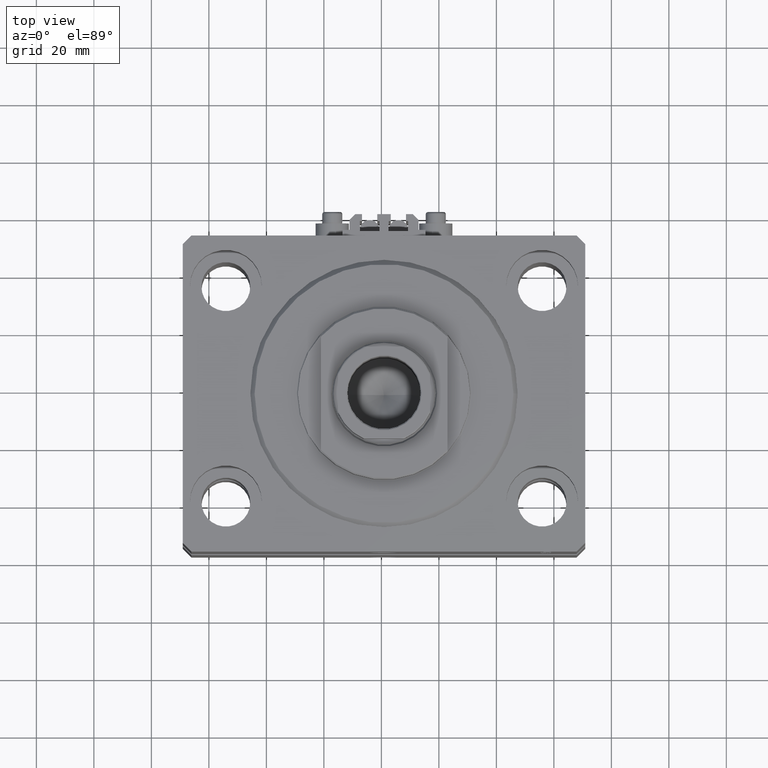
[diagram: clean part render]
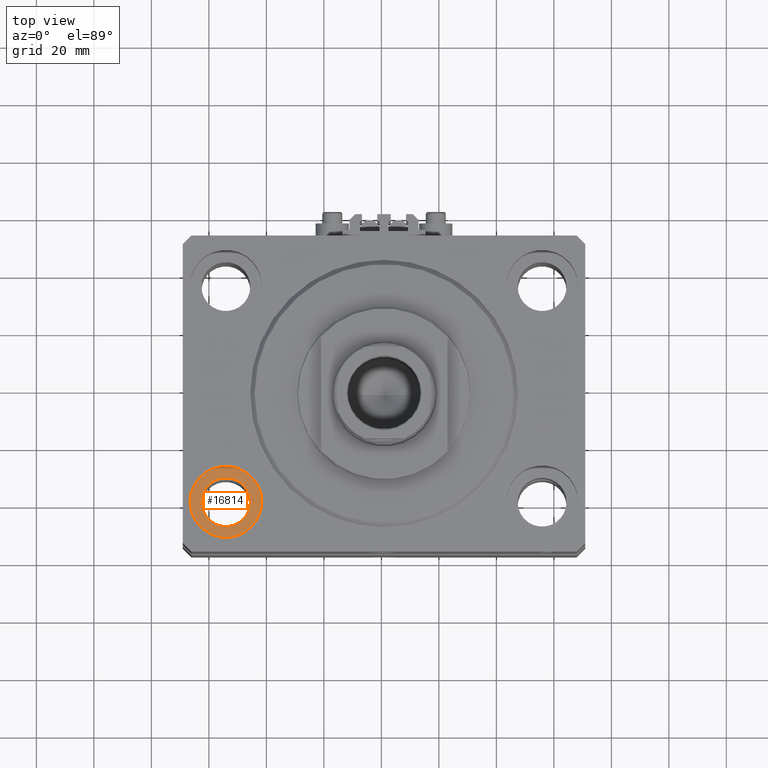
[diagram: same view with one face highlighted and labeled with its STEP entity id]
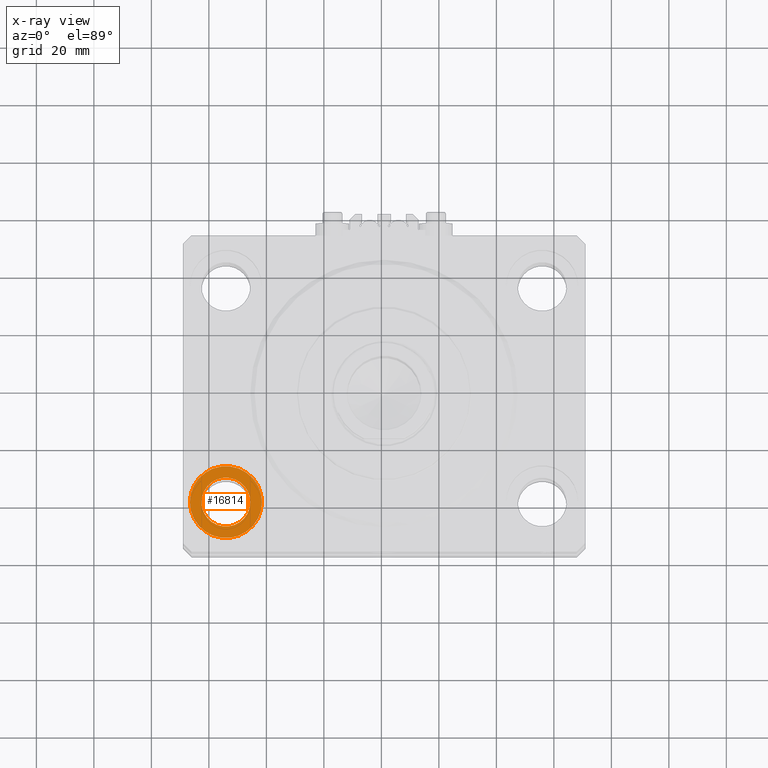
[diagram: x-ray of the same camera — body ghosted, the highlighted face saturated]
A machine part, top view. The second image highlights one B-rep face of the part: STEP entity #16814.
The next image is the same camera in x-ray: the body ghosted, the highlighted face saturated — about 0% of this face is hidden behind the body in this view.
In plain terms, the highlighted planar face has unit normal (0, 0, 1).
Its self-contained STEP definition (entity closure, byte-faithful):
#1547 = VERTEX_POINT ( 'NONE', #37913 ) ;
#2123 = DIRECTION ( 'NONE',  ( 0.000000000000000000, 0.000000000000000000, 1.000000000000000000 ) ) ;
#2834 = EDGE_LOOP ( 'NONE', ( #6706, #14645 ) ) ;
#2892 = DIRECTION ( 'NONE',  ( 1.000000000000000000, 0.000000000000000000, 0.000000000000000000 ) ) ;
#3696 = ORIENTED_EDGE ( 'NONE', *, *, #44164, .F. ) ;
#4733 = CARTESIAN_POINT ( 'NONE',  ( -55.00000000000000711, -37.50000000000000711, -17.00000000000000000 ) ) ;
#6394 = FACE_OUTER_BOUND ( 'NONE', #2834, .T. ) ;
#6636 = FACE_BOUND ( 'NONE', #19761, .T. ) ;
#6706 = ORIENTED_EDGE ( 'NONE', *, *, #32468, .T. ) ;
#7979 = CARTESIAN_POINT ( 'NONE',  ( -55.00000000000000711, -37.50000000000000711, -17.00000000000000000 ) ) ;
#9915 = PLANE ( 'NONE',  #27345 ) ;
#10516 = CARTESIAN_POINT ( 'NONE',  ( -55.00000000000000711, -37.50000000000000711, -17.00000000000000000 ) ) ;
#10683 = DIRECTION ( 'NONE',  ( 0.000000000000000000, 0.000000000000000000, 1.000000000000000000 ) ) ;
#12297 = AXIS2_PLACEMENT_3D ( 'NONE', #45014, #10683, #2892 ) ;
#13000 = DIRECTION ( 'NONE',  ( 1.000000000000000000, 0.000000000000000000, 0.000000000000000000 ) ) ;
#13848 = CIRCLE ( 'NONE', #41859, 8.499999999999992895 ) ;
#13914 = CIRCLE ( 'NONE', #12297, 12.49999999999999645 ) ;
#14324 = VERTEX_POINT ( 'NONE', #39493 ) ;
#14645 = ORIENTED_EDGE ( 'NONE', *, *, #25160, .T. ) ;
#16243 = DIRECTION ( 'NONE',  ( 1.000000000000000000, 0.000000000000000000, 0.000000000000000000 ) ) ;
#16713 = AXIS2_PLACEMENT_3D ( 'NONE', #4733, #20017, #13000 ) ;
#16814 = ADVANCED_FACE ( 'NONE', ( #6636, #6394 ), #9915, .T. ) ;
#18757 = DIRECTION ( 'NONE',  ( 1.000000000000000000, 0.000000000000000000, 0.000000000000000000 ) ) ;
#19248 = DIRECTION ( 'NONE',  ( 0.000000000000000000, 0.000000000000000000, 1.000000000000000000 ) ) ;
#19761 = EDGE_LOOP ( 'NONE', ( #3696, #24390 ) ) ;
#20017 = DIRECTION ( 'NONE',  ( 0.000000000000000000, 0.000000000000000000, 1.000000000000000000 ) ) ;
#23927 = CIRCLE ( 'NONE', #16713, 12.49999999999999645 ) ;
#24390 = ORIENTED_EDGE ( 'NONE', *, *, #45256, .F. ) ;
#25160 = EDGE_CURVE ( 'NONE', #14324, #40870, #13914, .T. ) ;
#27312 = CARTESIAN_POINT ( 'NONE',  ( -46.50000000000001421, -37.50000000000000711, -17.00000000000000000 ) ) ;
#27345 = AXIS2_PLACEMENT_3D ( 'NONE', #36491, #2123, #28961 ) ;
#27385 = CIRCLE ( 'NONE', #43407, 8.499999999999992895 ) ;
#28961 = DIRECTION ( 'NONE',  ( 1.000000000000000000, 0.000000000000000000, -0.000000000000000000 ) ) ;
#29317 = DIRECTION ( 'NONE',  ( 0.000000000000000000, 0.000000000000000000, 1.000000000000000000 ) ) ;
#32468 = EDGE_CURVE ( 'NONE', #40870, #14324, #23927, .T. ) ;
#36304 = VERTEX_POINT ( 'NONE', #27312 ) ;
#36491 = CARTESIAN_POINT ( 'NONE',  ( -55.00000000000000711, -37.50000000000000711, -17.00000000000000000 ) ) ;
#37913 = CARTESIAN_POINT ( 'NONE',  ( -63.50000000000000000, -37.50000000000000711, -17.00000000000000000 ) ) ;
#39493 = CARTESIAN_POINT ( 'NONE',  ( -67.50000000000000000, -37.50000000000000711, -17.00000000000000000 ) ) ;
#40870 = VERTEX_POINT ( 'NONE', #46812 ) ;
#41859 = AXIS2_PLACEMENT_3D ( 'NONE', #7979, #19248, #16243 ) ;
#43407 = AXIS2_PLACEMENT_3D ( 'NONE', #10516, #29317, #18757 ) ;
#44164 = EDGE_CURVE ( 'NONE', #36304, #1547, #27385, .T. ) ;
#45014 = CARTESIAN_POINT ( 'NONE',  ( -55.00000000000000711, -37.50000000000000711, -17.00000000000000000 ) ) ;
#45256 = EDGE_CURVE ( 'NONE', #1547, #36304, #13848, .T. ) ;
#46812 = CARTESIAN_POINT ( 'NONE',  ( -42.50000000000000711, -37.50000000000000711, -17.00000000000000000 ) ) ;